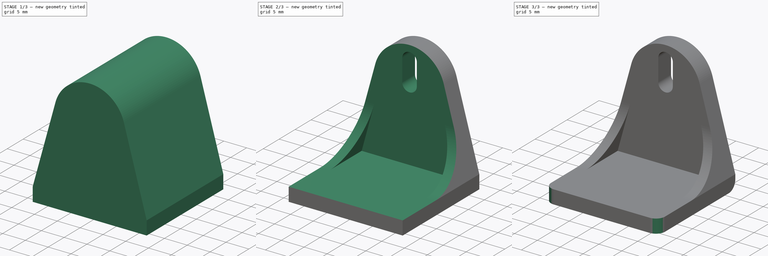
[diagram: build sequence overview — one tinted view per stage of 3, left to right]
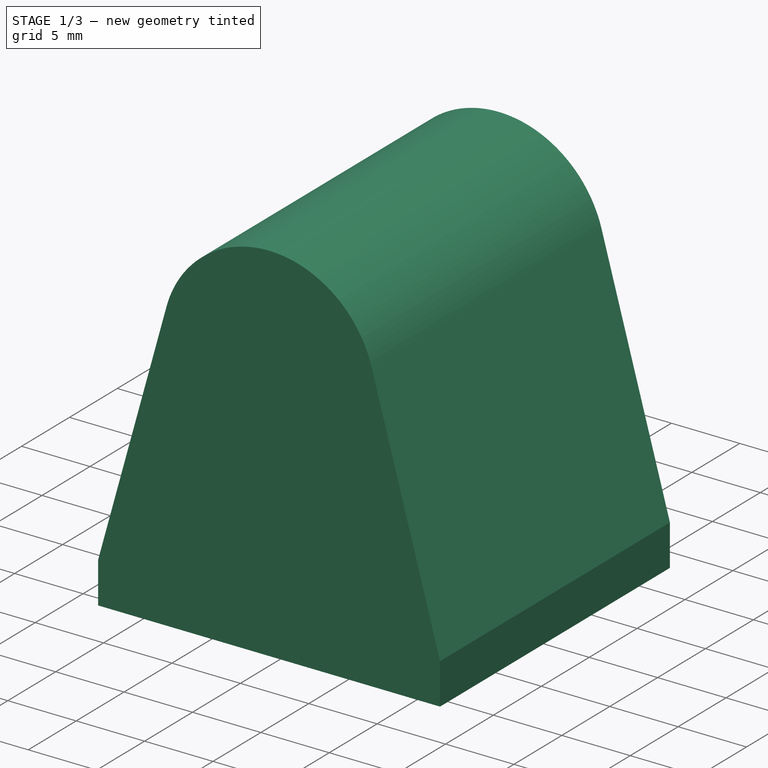
[diagram: stage 1 of 3 — iso view after this stage's code; geometry added in this stage tinted green]
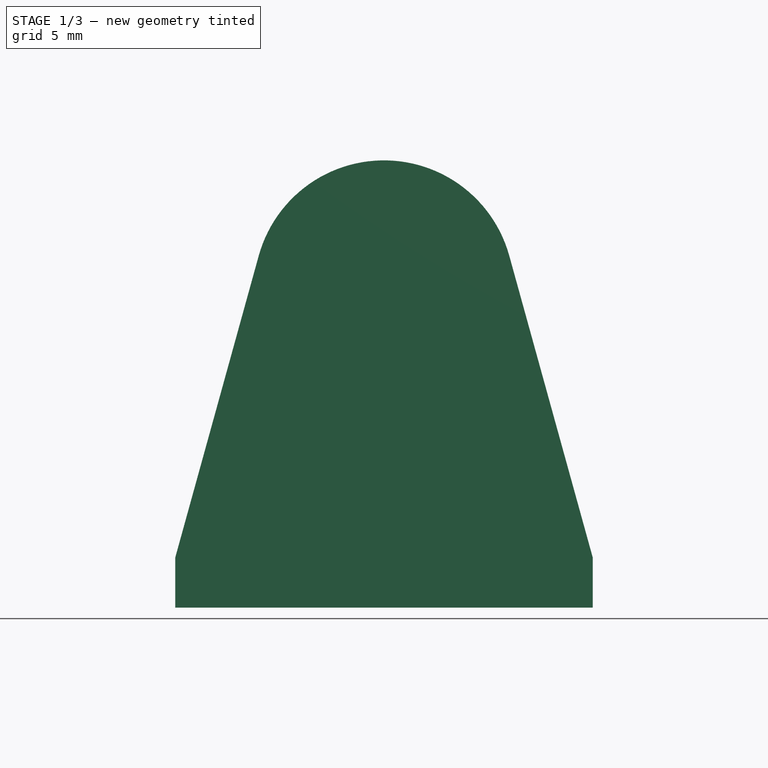
[diagram: stage 1 of 3 — front view after this stage's code; geometry added in this stage tinted green]
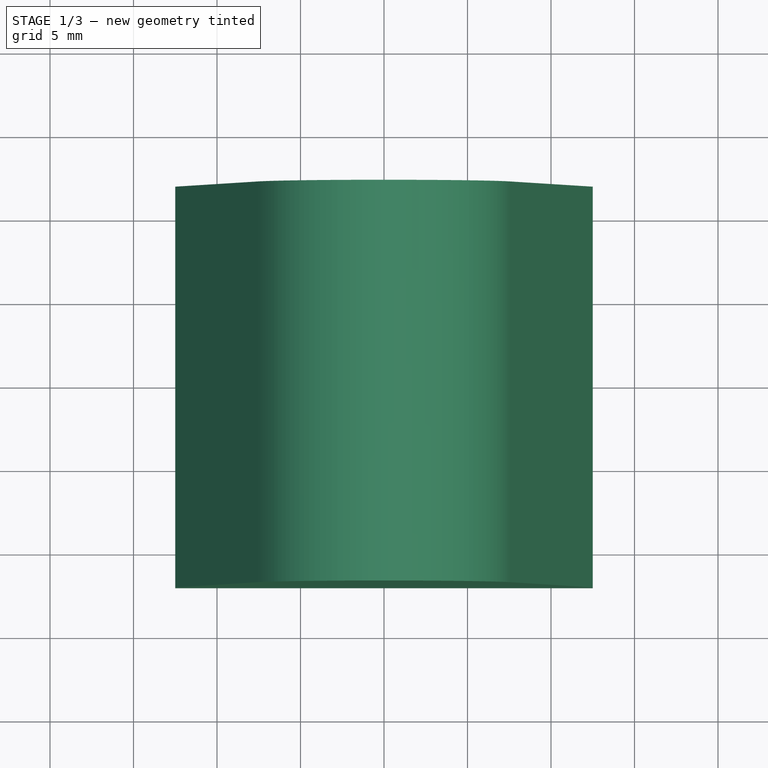
[diagram: stage 1 of 3 — top view after this stage's code; geometry added in this stage tinted green]
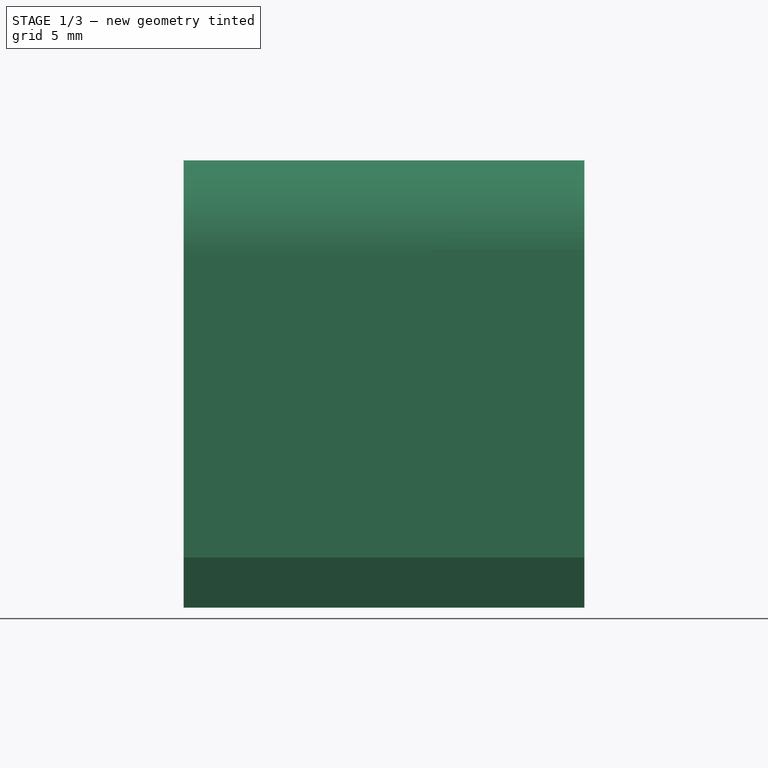
[diagram: stage 1 of 3 — right view after this stage's code; geometry added in this stage tinted green]
FCSTD DOCUMENT  (FreeCAD 0.15R4671 (Git))
Label: encoder_holder
License: All rights reserved
LicenseURL: http://en.wikipedia.org/wiki/All_rights_reserved
objects: Sketcher::SketchObject×5, PartDesign::Pocket×3, PartDesign::Pad×2, PartDesign::Fillet×2
note: 17 computed .brp shape members not serialized (recipe doc carries the construction recipe); baked Part::Feature solids carry a one-line shape summary decoded from their .brp

FEATURE [Sketcher::SketchObject] Sketch
  sketch-geometry (4):
    g0: LineSegment StartX=-12.5 StartY=12 StartZ=0 EndX=12.5 EndY=12 EndZ=0
    g1: LineSegment StartX=12.5 StartY=12 StartZ=0 EndX=12.5 EndY=-12 EndZ=0
    g2: LineSegment StartX=12.5 StartY=-12 StartZ=0 EndX=-12.5 EndY=-12 EndZ=0
    g3: LineSegment StartX=-12.5 StartY=-12 StartZ=0 EndX=-12.5 EndY=12 EndZ=0
  constraints (12):
    c: Coincident(g0,g1)
    c: Coincident(g1,g2)
    c: Coincident(g2,g3)
    c: Coincident(g3,g0)
    c: Horizontal(g0)
    c: Horizontal(g2)
    c: Vertical(g1)
    c: Vertical(g3)
    c: Symmetric(g0,g1,g-1)
    c: Symmetric(g0,g0,g-2)
    c: DistanceY(g3) = 24
    c: DistanceX(g2) = -25
FEATURE [PartDesign::Pad] Pad
  Length = 3
  Length2 = 100
  Sketch = -> Sketch
  Type = 0
FEATURE [Sketcher::SketchObject] Sketch001
  ExternalGeometry = -> [Pad]
  Placement = pos=(0,12,0) rot=(0,0.707107,0.707107;3.14159rad)
  Support = -> Pad [Face1]
  sketch-geometry (4):
    g0: LineSegment StartX=12.5 StartY=3 StartZ=0 EndX=7.5 EndY=21.0747 EndZ=0
    g1: ArcOfCircle CenterX=0 CenterY=19 CenterZ=0 NormalX=0 NormalY=0 NormalZ=1 Radius=7.78168 StartAngle=0.26988 EndAngle=2.87171
    g2: LineSegment StartX=-7.5 StartY=21.0747 StartZ=0 EndX=-12.5 EndY=3 EndZ=0
    g3: LineSegment StartX=12.5 StartY=3 StartZ=0 EndX=-12.5 EndY=3 EndZ=0
  constraints (9):
    c: Coincident(g-3,g0)
    c: Tangent(g0,g1) = -1.5708
    c: Tangent(g1,g2) = -1.5708
    c: Coincident(g-3,g2)
    c: PointOnObject(g1,g-2)
    c: DistanceY(g1,g0) = -16
    c: Coincident(g3,g0)
    c: Coincident(g3,g2)
    c: DistanceX(g0,g1) = -15
FEATURE [PartDesign::Pad] Pad001
  Length = 29
  Length2 = 100
  Reversed = true
  Sketch = -> Sketch001
  Type = 3
  UpToFace = -> Pad [Face3]
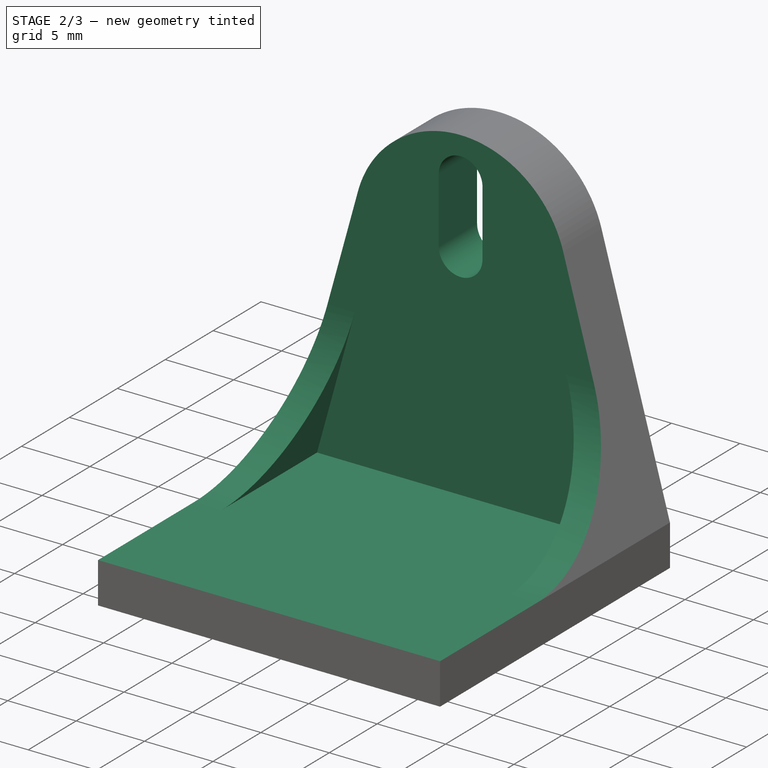
[diagram: stage 2 of 3 — iso view after this stage's code; geometry added in this stage tinted green]
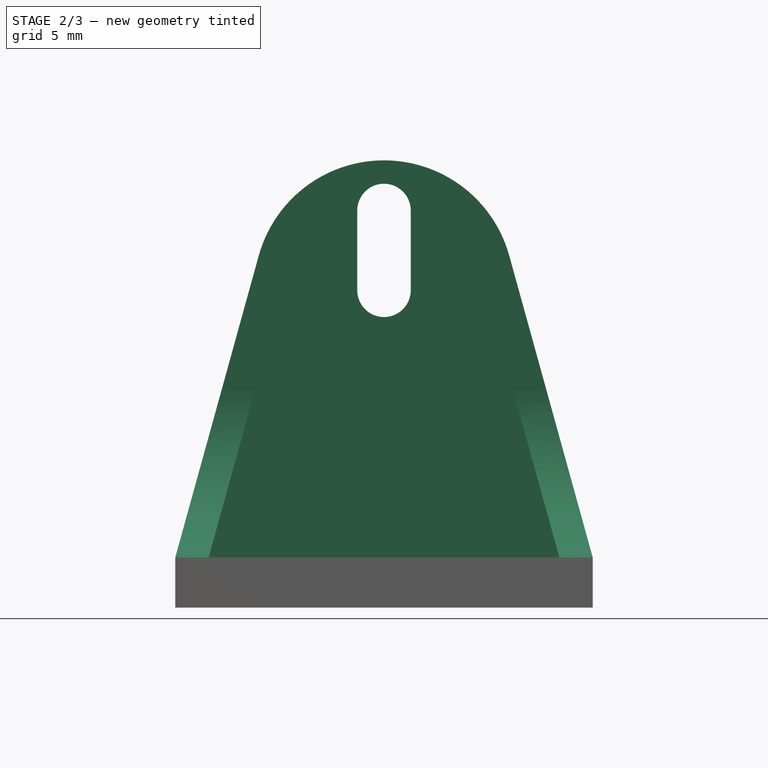
[diagram: stage 2 of 3 — front view after this stage's code; geometry added in this stage tinted green]
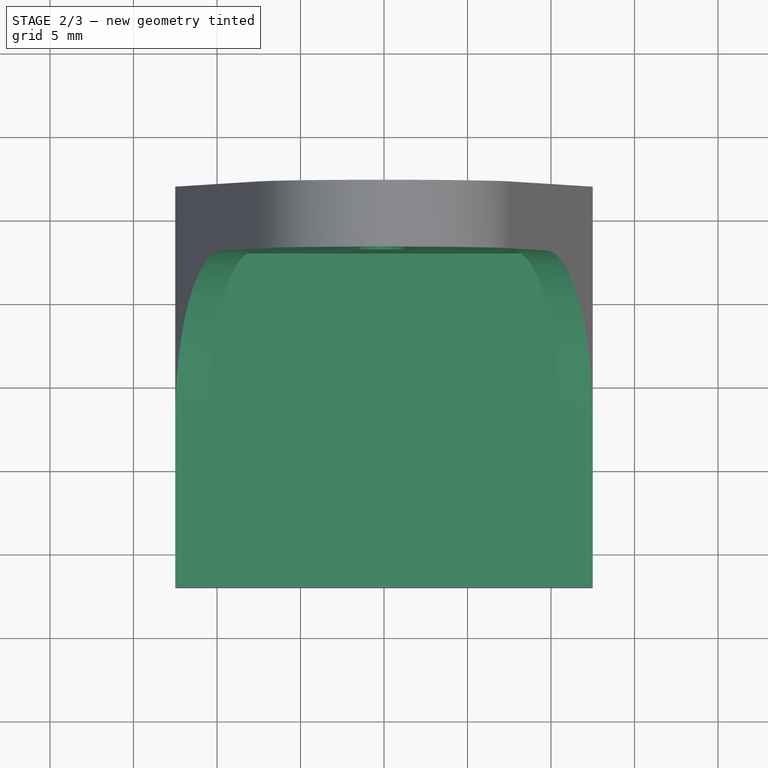
[diagram: stage 2 of 3 — top view after this stage's code; geometry added in this stage tinted green]
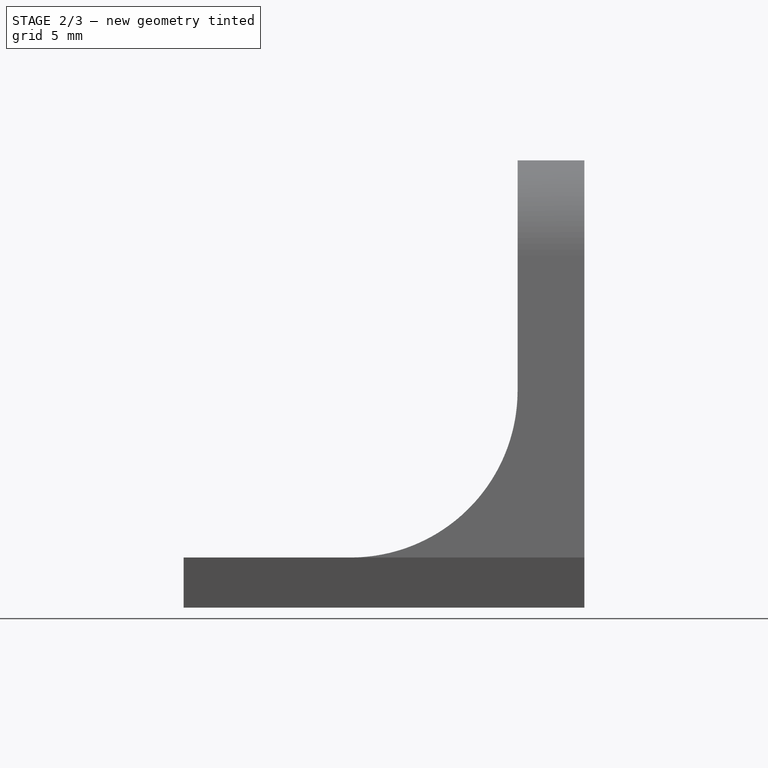
[diagram: stage 2 of 3 — right view after this stage's code; geometry added in this stage tinted green]
FEATURE [Sketcher::SketchObject] Sketch002
  ExternalGeometry = -> [Pad001]
  Placement = pos=(0,-12,0) rot=(1,0,0;1.5708rad)
  Support = -> Pad001 [Face8]
  sketch-geometry (8):
    g0: LineSegment StartX=10.5 StartY=3 StartZ=0 EndX=-10.5 EndY=3 EndZ=0
    g1: LineSegment StartX=-10.5 StartY=3 StartZ=0 EndX=-7.73371 EndY=13 EndZ=0
    g2: LineSegment StartX=7.73371 StartY=13 StartZ=0 EndX=10.5 EndY=3 EndZ=0
    g3: LineSegment StartX=-15 StartY=26.7817 StartZ=0 EndX=15 EndY=26.7817 EndZ=0
    g4: LineSegment StartX=15 StartY=26.7817 StartZ=0 EndX=15 EndY=13 EndZ=0
    g5: LineSegment StartX=-15 StartY=13 StartZ=0 EndX=-15 EndY=26.7817 EndZ=0
    g6: LineSegment StartX=7.73371 StartY=13 StartZ=0 EndX=15 EndY=13 EndZ=0
    g7: LineSegment StartX=-7.73371 StartY=13 StartZ=0 EndX=-15 EndY=13 EndZ=0
  constraints (23):
    c: Coincident(g0,g1)
    c: Coincident(g2,g0)
    c: Horizontal(g0)
    c: PointOnObject(g0,g-3)
    c: Symmetric(g1,g2,g-2)
    c: Symmetric(g0,g0,g-2)
    c: Coincident(g3,g4)
    c: Coincident(g5,g3)
    c: Horizontal(g3)
    c: Vertical(g4)
    c: Vertical(g5)
    c: Coincident(g6,g2)
    c: Horizontal(g6)
    c: Coincident(g7,g1)
    c: Horizontal(g7)
    c: Coincident(g7,g5)
    c: Coincident(g6,g4)
    c: Parallel(g-4,g1)
    c: DistanceX(g0,g-4) = -2
    c: DistanceY(g5,g-4) = -10
    c: Symmetric(g5,g4,g-2)
    c: DistanceX(g3,g3) = -30
    c: Tangent(g3,g-5)
FEATURE [PartDesign::Pocket] Pocket
  Length = 20
  Sketch = -> Sketch002
  Type = 0
FEATURE [Sketcher::SketchObject] Sketch003
  ExternalGeometry = -> [Pocket]
  Placement = pos=(12.5,0,0) rot=(0.57735,0.57735,0.57735;2.0944rad)
  Support = -> Pocket [Face3]
  sketch-geometry (4):
    g0: ArcOfCircle CenterX=-2 CenterY=13 CenterZ=0 NormalX=0 NormalY=0 NormalZ=1 Radius=10 StartAngle=4.71239 EndAngle=7.85398
    g1: LineSegment StartX=-1.99997 StartY=3 StartZ=0 EndX=-12 EndY=3 EndZ=0
    g2: LineSegment StartX=-12 StartY=3 StartZ=0 EndX=-12 EndY=23 EndZ=0
    g3: LineSegment StartX=-12 StartY=23 StartZ=0 EndX=-1.99997 EndY=23 EndZ=0
  constraints (12):
    c: Tangent(g-3,g0)
    c: Tangent(g0,g-4)
    c: PointOnObject(g0,g-5)
    c: Horizontal(g1)
    c: Coincident(g1,g2)
    c: Vertical(g2)
    c: Coincident(g2,g3)
    c: Horizontal(g3)
    c: Coincident(g0,g1)
    c: Coincident(g0,g3)
    c: Coincident(g1,g-4)
    c: Tangent(g3,g0)
FEATURE [PartDesign::Pocket] Pocket001
  Length = 27
  Sketch = -> Sketch003
  Type = 0
FEATURE [Sketcher::SketchObject] Sketch004
  ExternalGeometry = -> [Pocket001]
  Placement = pos=(0,8,0) rot=(1,0,0;1.5708rad)
  Support = -> Pocket001 [Face14]
  sketch-geometry (4):
    g0: ArcOfCircle CenterX=0 CenterY=23.7817 CenterZ=0 NormalX=0 NormalY=0 NormalZ=1 Radius=1.6 StartAngle=0 EndAngle=3.14159
    g1: ArcOfCircle CenterX=0 CenterY=19 CenterZ=0 NormalX=0 NormalY=0 NormalZ=1 Radius=1.6 StartAngle=3.14159 EndAngle=6.28319
    g2: LineSegment StartX=-1.6 StartY=23.7817 StartZ=0 EndX=-1.6 EndY=19 EndZ=0
    g3: LineSegment StartX=1.6 StartY=23.7817 StartZ=0 EndX=1.6 EndY=19 EndZ=0
  constraints (10):
    c: Tangent(g0,g3) = 1.5708
    c: Tangent(g0,g2) = -1.5708
    c: Tangent(g2,g1) = -1.5708
    c: Tangent(g3,g1) = 1.5708
    c: Vertical(g2)
    c: Equal(g0,g1)
    c: PointOnObject(g0,g-2)
    c: DistanceX(g0,g0) = 3.2
    c: DistanceY(g0,g-3) = 3
    c: Coincident(g1,g-3)
FEATURE [PartDesign::Pocket] Pocket002
  Length = 5
  Sketch = -> Sketch004
  Type = 2
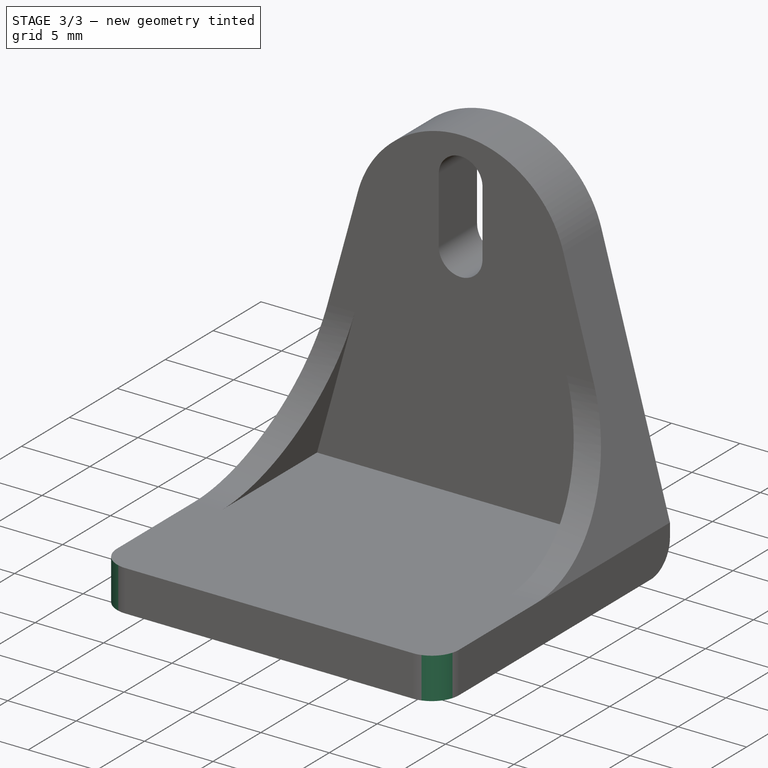
[diagram: stage 3 of 3 — iso view after this stage's code; geometry added in this stage tinted green]
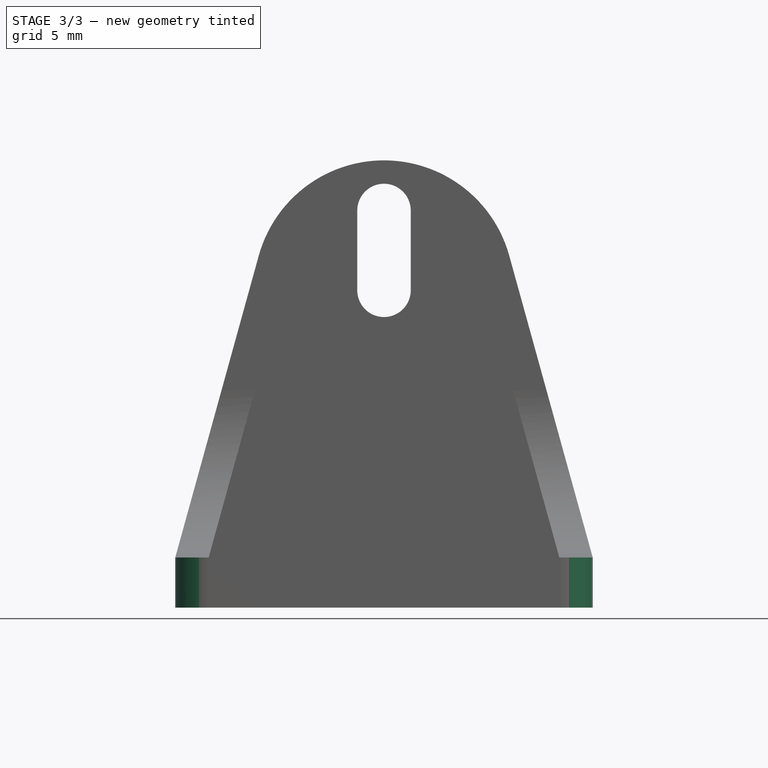
[diagram: stage 3 of 3 — front view after this stage's code; geometry added in this stage tinted green]
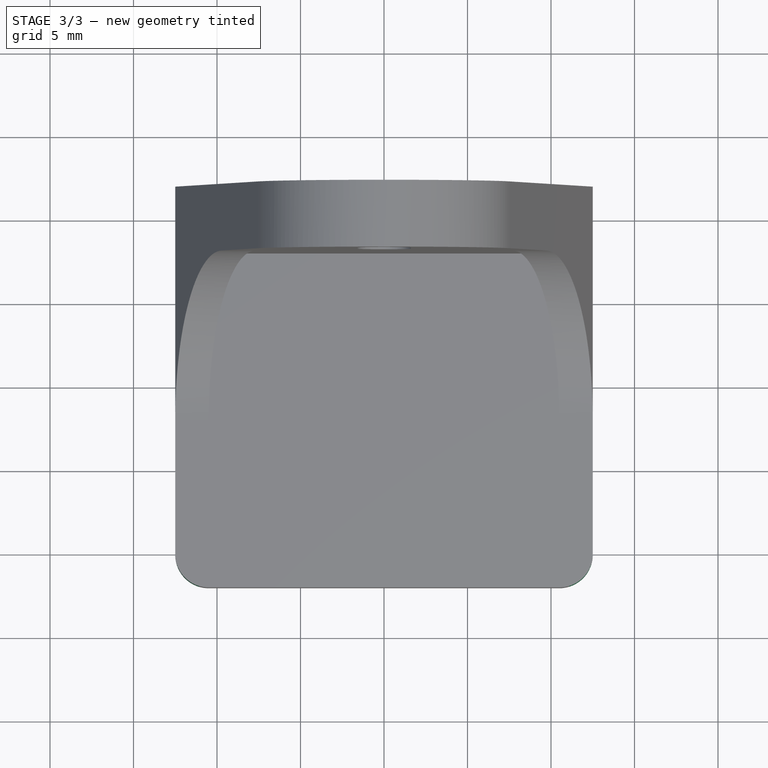
[diagram: stage 3 of 3 — top view after this stage's code; geometry added in this stage tinted green]
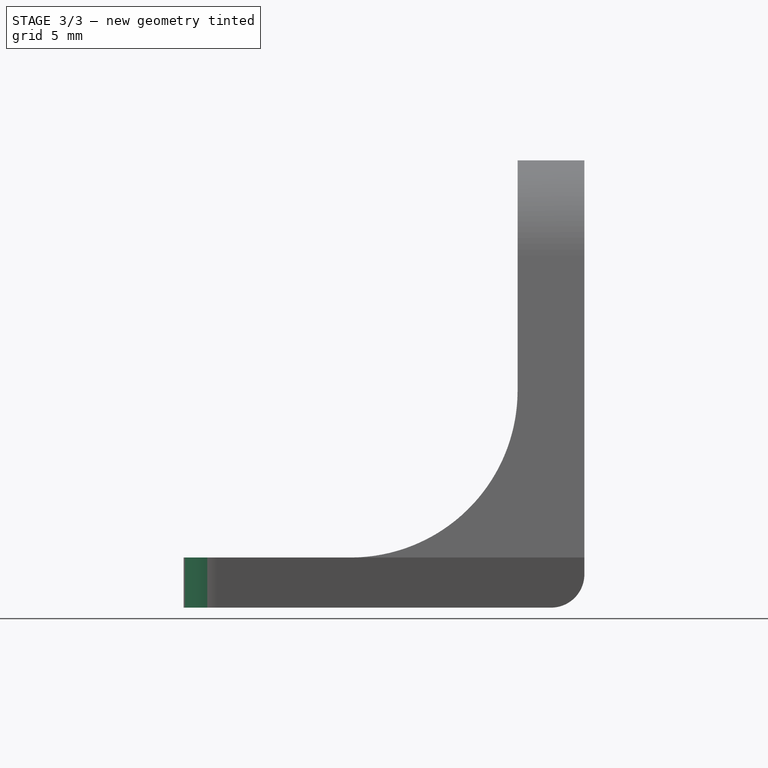
[diagram: stage 3 of 3 — right view after this stage's code; geometry added in this stage tinted green]
FEATURE [PartDesign::Fillet] Fillet
  Base = -> Pocket002 [Edge9,Edge12]
  Radius = 2
FEATURE [PartDesign::Fillet] Fillet001
  Base = -> Fillet [Edge3]
  Radius = 2
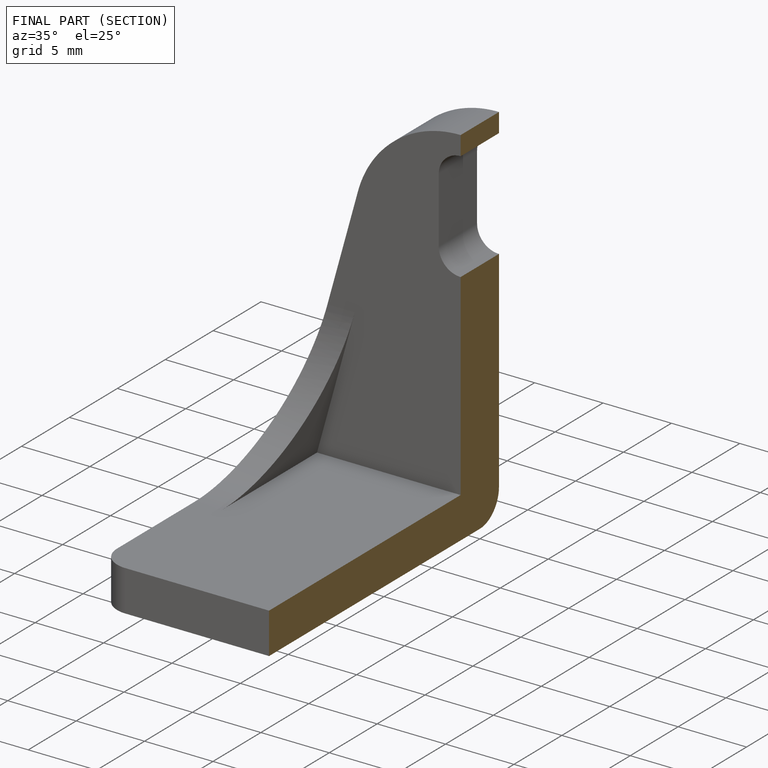
[diagram: finished part — half-section view (interior)]
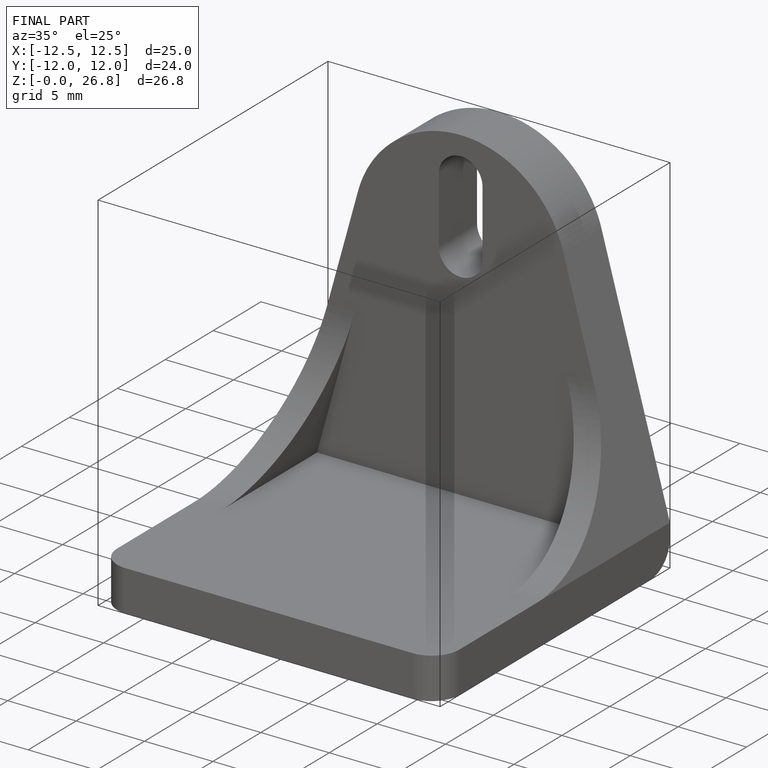
[diagram: finished part — iso view with bounding-box wireframe]
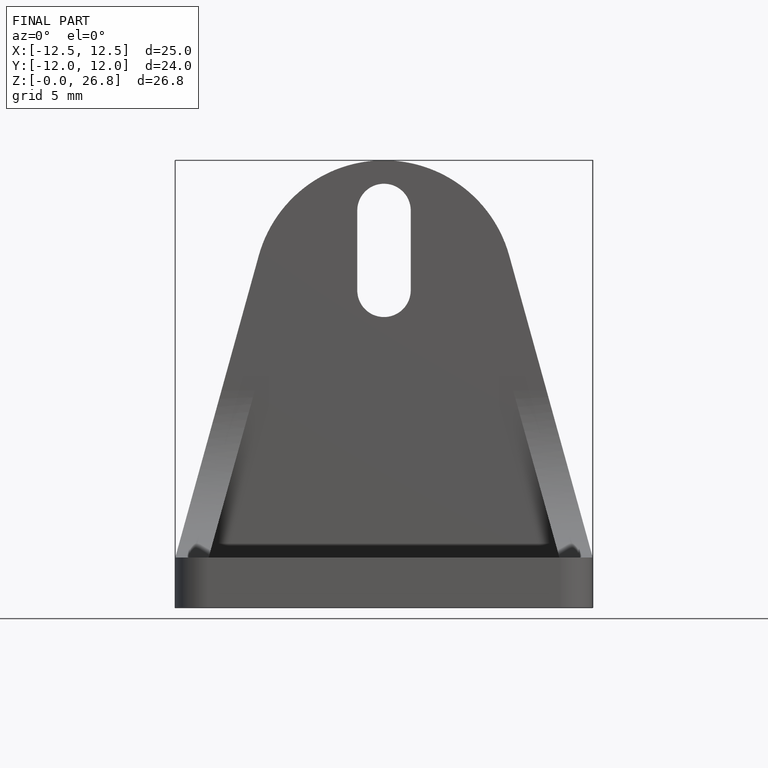
[diagram: finished part — front view with bounding-box wireframe]
